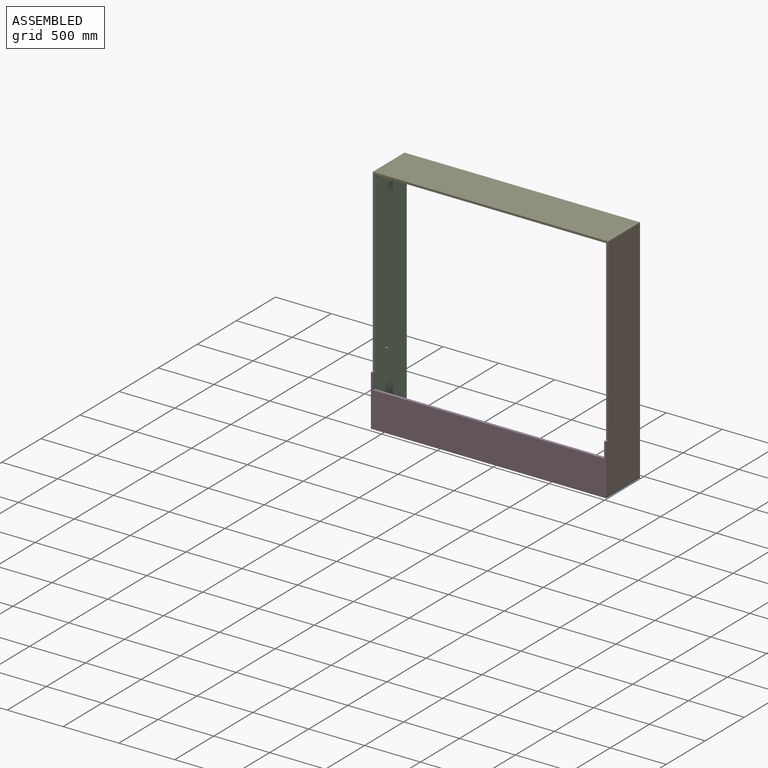
[diagram: assembled view]
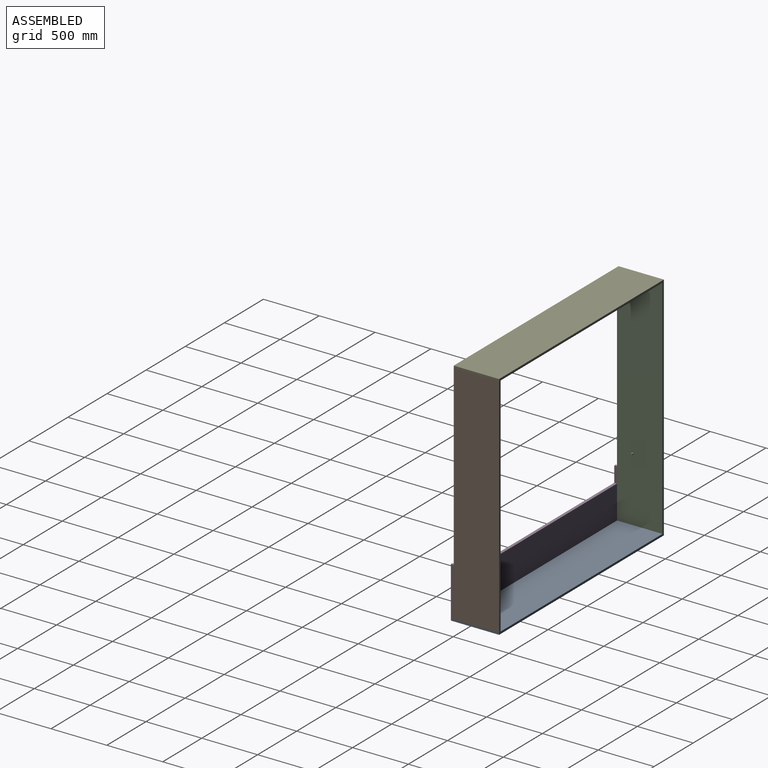
[diagram: assembled view, second angle]
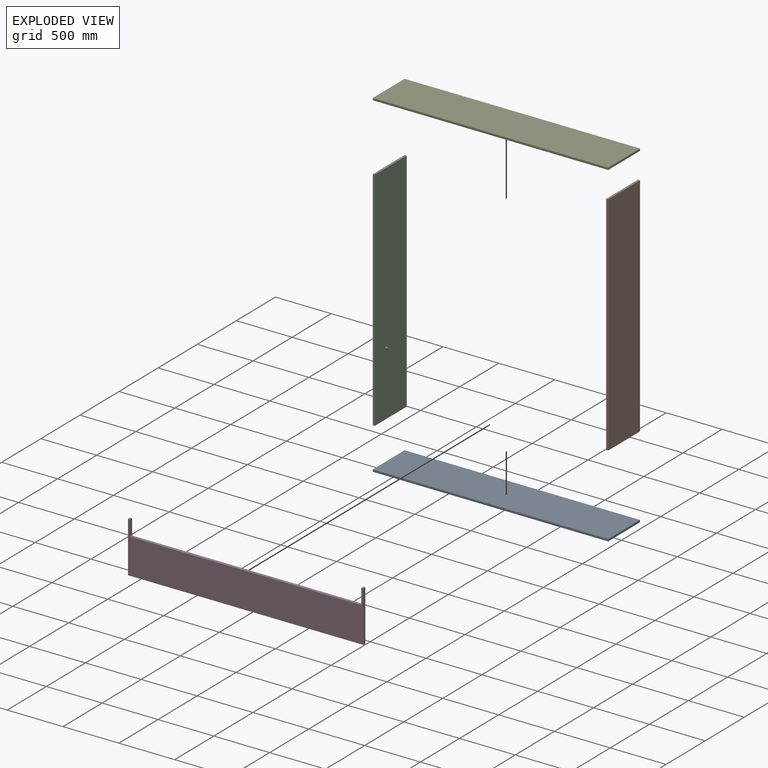
[diagram: exploded view]
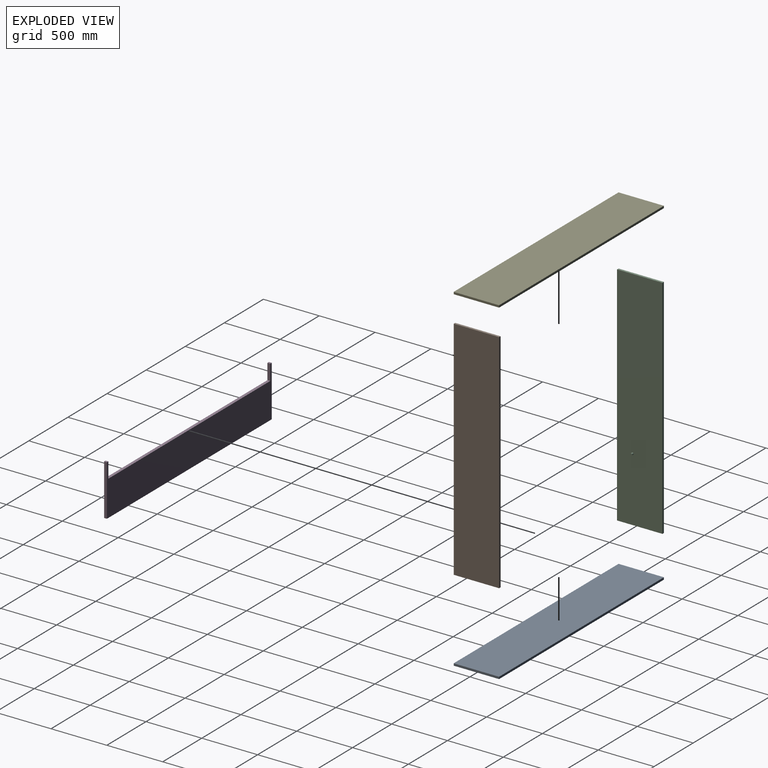
[diagram: exploded view, second angle]
ASSEMBLY  parts=5 mates=4
PART A: 6 faces, bbox 2108.2x406.4x19.1 mm
  f0: plane 406.4x19.05mm, normal (1,0,0), area 7741.9mm2, adj f1,f3,f4,f5
  f1: plane 2108.2x19.05mm, normal (0,1,0), area 40161.2mm2, adj f0,f2,f4,f5
  f2: plane 406.4x19.05mm, normal (-1,0,0), area 7741.9mm2, adj f1,f3,f4,f5
  f3: plane 2108.2x19.05mm, normal (0,-1,0), area 40161.2mm2, adj f0,f2,f4,f5
  f4: plane 2108.2x406.4mm, normal (0,0,1), area 856772.5mm2, adj f0,f1,f2,f3
  f5: plane 2108.2x406.4mm, normal (0,0,-1), area 856772.5mm2, adj f0,f1,f2,f3
PART B: 8 faces, bbox 38.1x406.4x2032 mm
  f0: plane 2032x19.05mm, normal (0,1,0), area 38709.6mm2, adj f1,f3,f4,f5
  f1: plane 2032x406.4mm, normal (-1,0,0), area 825556.5mm2, adj f0,f2,f4,f5,f7
  f2: plane 2032x19.05mm, normal (0,-1,0), area 38709.6mm2, adj f1,f3,f4,f5
  f3: plane 2032x406.4mm, normal (1,0,0), area 825804.8mm2, adj f0,f2,f4,f5
  f4: plane 406.4x19.05mm, normal (0,0,1), area 7741.9mm2, adj f0,f1,f2,f3
  f5: plane 406.4x19.05mm, normal (0,0,-1), area 7741.9mm2, adj f0,f1,f2,f3
  f6: plane 17.78x17.78mm, normal (-1,0,0), area 248.3mm2, adj f7
  f7: cylinder r=8.89mm len=19.05mm, axis (1,0,0), area 1064.1mm2, adj f1,f6
PART C: 8 faces, bbox 38.1x406.4x2032 mm
  f0: plane 2032x19.05mm, normal (0,1,0), area 38709.6mm2, adj f1,f3,f4,f5
  f1: plane 2032x406.4mm, normal (-1,0,0), area 825804.8mm2, adj f0,f2,f4,f5
  f2: plane 2032x19.05mm, normal (0,-1,0), area 38709.6mm2, adj f1,f3,f4,f5
  f3: plane 2032x406.4mm, normal (1,0,0), area 825556.5mm2, adj f0,f2,f4,f5,f7
  f4: plane 406.4x19.05mm, normal (0,0,1), area 7741.9mm2, adj f0,f1,f2,f3
  f5: plane 406.4x19.05mm, normal (0,0,-1), area 7741.9mm2, adj f0,f1,f2,f3
  f6: plane 17.78x17.78mm, normal (1,0,0), area 248.3mm2, adj f7
  f7: cylinder r=8.89mm len=19.05mm, axis (-1,0,0), area 1064.1mm2, adj f3,f6
PART D: 10 faces, bbox 2108.2x25.4x457.2 mm
  f0: plane 2108.2x25.4mm, normal (0,0,-1), area 53548.3mm2, adj f1,f7,f8,f9
  f1: plane 457.2x25.4mm, normal (1,0,0), area 11612.9mm2, adj f0,f2,f8,f9
  f2: plane 25.4x19.05mm, normal (0,0,1), area 483.9mm2, adj f1,f3,f8,f9
  f3: plane 139.7x25.4mm, normal (-1,0,0), area 3548.4mm2, adj f2,f4,f8,f9
  f4: plane 2070.1x25.4mm, normal (0,0,1), area 52580.5mm2, adj f3,f5,f8,f9
  f5: plane 139.7x25.4mm, normal (1,0,0), area 3548.4mm2, adj f4,f6,f8,f9
  f6: plane 25.4x19.05mm, normal (0,0,1), area 483.9mm2, adj f5,f7,f8,f9
  f7: plane 457.2x25.4mm, normal (-1,0,0), area 11612.9mm2, adj f0,f6,f8,f9
  f8: plane 2108.2x457.2mm, normal (0,-1,0), area 674676.1mm2, adj f0,f1,f2,f3,f4,f5,f6,f7
  f9: plane 2108.2x457.2mm, normal (0,1,0), area 674676.1mm2, adj f0,f1,f2,f3,f4,f5,f6,f7
PART E: 6 faces, bbox 2108.2x406.4x19.1 mm
  f0: plane 2108.2x19.05mm, normal (0,1,0), area 40161.2mm2, adj f1,f3,f4,f5
  f1: plane 406.4x19.05mm, normal (-1,0,0), area 7741.9mm2, adj f0,f2,f4,f5
  f2: plane 2108.2x19.05mm, normal (0,-1,0), area 40161.2mm2, adj f1,f3,f4,f5
  f3: plane 406.4x19.05mm, normal (1,0,0), area 7741.9mm2, adj f0,f2,f4,f5
  f4: plane 2108.2x406.4mm, normal (0,0,1), area 856772.5mm2, adj f0,f1,f2,f3
  f5: plane 2108.2x406.4mm, normal (0,0,-1), area 856772.5mm2, adj f0,f1,f2,f3
PLACE A t=(-66.06,50.57,320.39)mm
PLACE B t=(-66.06,50.57,320.39)mm
PLACE C t=(-66.06,50.57,320.39)mm
PLACE D t=(-66.06,50.57,320.39)mm
PLACE E t=(-66.06,50.57,320.39)mm
MATE fastened A.f4 <-> B.f5  axis (0,0,1) through (988.04,50.57,339.44)mm
MATE fastened B.f4 <-> E.f5  axis (0,0,1) through (988.04,50.57,2371.44)mm
MATE fastened D.f9 <-> A.f3  axis (0,1,0) through (-66.06,-152.63,320.39)mm
MATE fastened C.f5 <-> A.f4  axis (0,0,-1) through (-1120.16,50.57,339.44)mm
